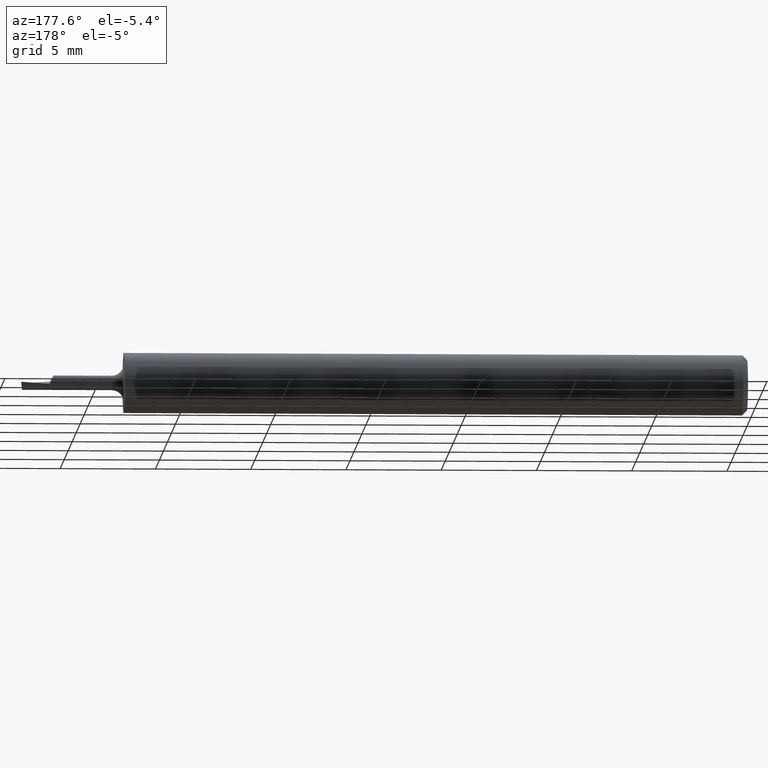
[diagram: clean part render]
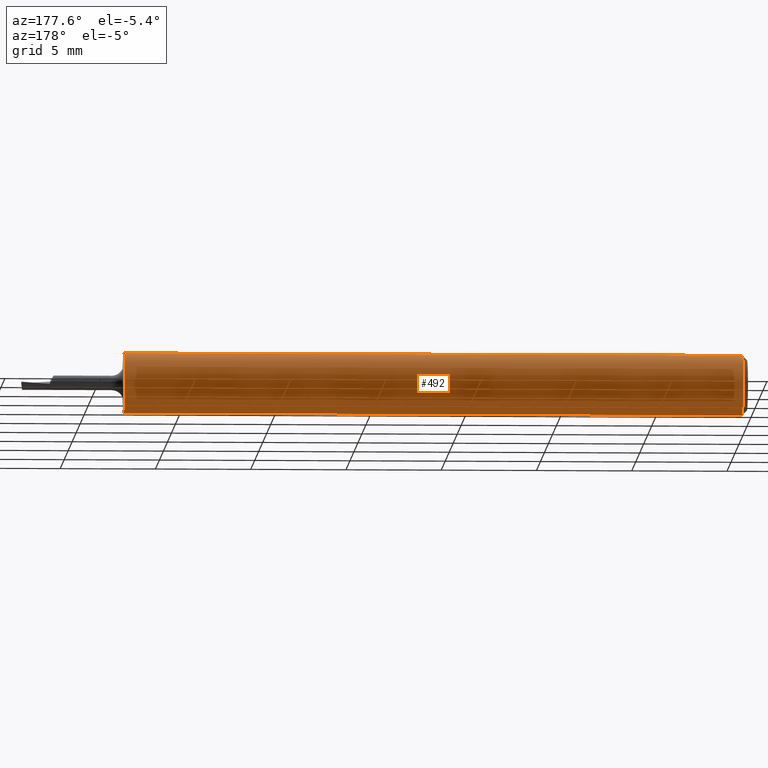
[diagram: same view with one face highlighted and labeled with its STEP entity id]
A machine part, auxiliary view. The second image highlights one B-rep face of the part: STEP entity #492.
In plain terms, the highlighted cylindrical surface (edge-blend (fillet) strip) has radius 1.5837 mm, axis along (-1, -0, -0).
Its self-contained STEP definition (entity closure, byte-faithful):
#8 = CIRCLE ( 'NONE', #730, 0.06234999999999997489 ) ;
#21 = CIRCLE ( 'NONE', #716, 0.06235000000000000264 ) ;
#33 = FACE_OUTER_BOUND ( 'NONE', #358, .T. ) ;
#61 = DIRECTION ( 'NONE',  ( 0.000000000000000000, 0.000000000000000000, -1.000000000000000000 ) ) ;
#115 = CARTESIAN_POINT ( 'NONE',  ( 0.000000000000000000, 7.635672792683743590E-18, -0.06234999999999997489 ) ) ;
#135 = DIRECTION ( 'NONE',  ( 0.000000000000000000, 0.000000000000000000, 1.000000000000000000 ) ) ;
#137 = AXIS2_PLACEMENT_3D ( 'NONE', #433, #724, #204 ) ;
#175 = CARTESIAN_POINT ( 'NONE',  ( 1.288000000000000256, 0.000000000000000000, 0.000000000000000000 ) ) ;
#179 = DIRECTION ( 'NONE',  ( -1.000000000000000000, -0.000000000000000000, -0.000000000000000000 ) ) ;
#204 = DIRECTION ( 'NONE',  ( 0.000000000000000000, 0.000000000000000000, 1.000000000000000000 ) ) ;
#218 = EDGE_CURVE ( 'NONE', #298, #695, #8, .T. ) ;
#258 = CYLINDRICAL_SURFACE ( 'NONE', #137, 0.06234999999999997489 ) ;
#272 = LINE ( 'NONE', #733, #645 ) ;
#273 = DIRECTION ( 'NONE',  ( 1.000000000000000000, 0.000000000000000000, 0.000000000000000000 ) ) ;
#298 = VERTEX_POINT ( 'NONE', #357 ) ;
#302 = ORIENTED_EDGE ( 'NONE', *, *, #304, .F. ) ;
#304 = EDGE_CURVE ( 'NONE', #707, #327, #21, .T. ) ;
#327 = VERTEX_POINT ( 'NONE', #531 ) ;
#357 = CARTESIAN_POINT ( 'NONE',  ( 1.288000000000000256, 7.635672792683743590E-18, -0.06234999999999997489 ) ) ;
#358 = EDGE_LOOP ( 'NONE', ( #574, #513, #302, #670 ) ) ;
#386 = VECTOR ( 'NONE', #572, 39.37007874015748143 ) ;
#417 = CARTESIAN_POINT ( 'NONE',  ( 0.01000000000000000021, 0.000000000000000000, 0.06235000000000000264 ) ) ;
#433 = CARTESIAN_POINT ( 'NONE',  ( 0.000000000000000000, 0.000000000000000000, 0.000000000000000000 ) ) ;
#454 = DIRECTION ( 'NONE',  ( -1.000000000000000000, -0.000000000000000000, -0.000000000000000000 ) ) ;
#492 = ADVANCED_FACE ( 'NONE', ( #33 ), #258, .T. ) ;
#513 = ORIENTED_EDGE ( 'NONE', *, *, #671, .T. ) ;
#531 = CARTESIAN_POINT ( 'NONE',  ( 0.01000000000000000021, 7.635672792683748212E-18, -0.06235000000000000264 ) ) ;
#572 = DIRECTION ( 'NONE',  ( -1.000000000000000000, -0.000000000000000000, -0.000000000000000000 ) ) ;
#574 = ORIENTED_EDGE ( 'NONE', *, *, #218, .F. ) ;
#583 = CARTESIAN_POINT ( 'NONE',  ( 0.01000000000000000021, 0.000000000000000000, 0.000000000000000000 ) ) ;
#622 = EDGE_CURVE ( 'NONE', #695, #707, #272, .T. ) ;
#634 = LINE ( 'NONE', #115, #386 ) ;
#645 = VECTOR ( 'NONE', #454, 39.37007874015748143 ) ;
#670 = ORIENTED_EDGE ( 'NONE', *, *, #622, .F. ) ;
#671 = EDGE_CURVE ( 'NONE', #298, #327, #634, .T. ) ;
#695 = VERTEX_POINT ( 'NONE', #715 ) ;
#707 = VERTEX_POINT ( 'NONE', #417 ) ;
#715 = CARTESIAN_POINT ( 'NONE',  ( 1.288000000000000256, 0.000000000000000000, 0.06234999999999997489 ) ) ;
#716 = AXIS2_PLACEMENT_3D ( 'NONE', #583, #179, #135 ) ;
#724 = DIRECTION ( 'NONE',  ( -1.000000000000000000, -0.000000000000000000, -0.000000000000000000 ) ) ;
#730 = AXIS2_PLACEMENT_3D ( 'NONE', #175, #273, #61 ) ;
#733 = CARTESIAN_POINT ( 'NONE',  ( 0.000000000000000000, 0.000000000000000000, 0.06234999999999997489 ) ) ;